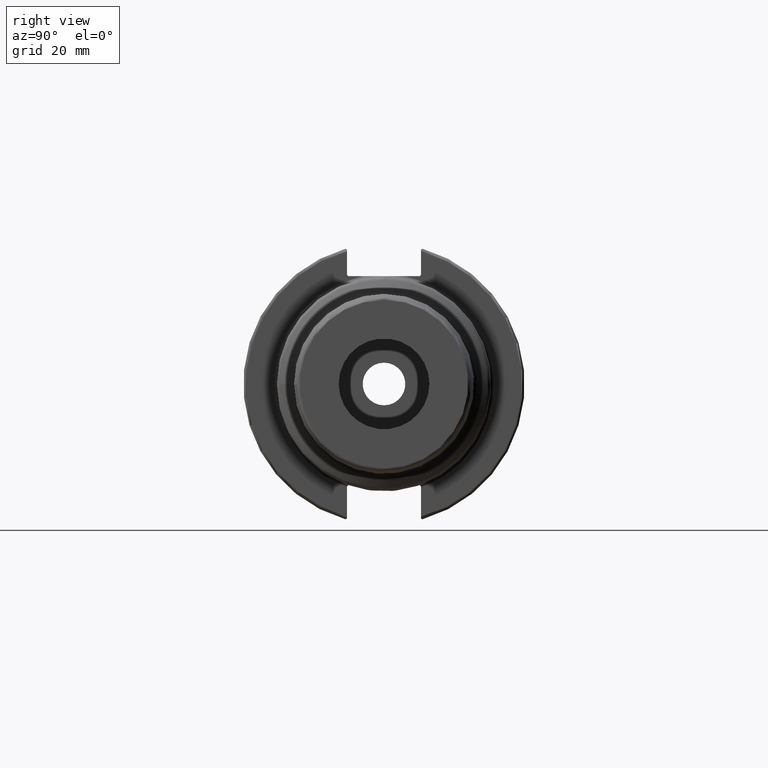
[diagram: clean part render]
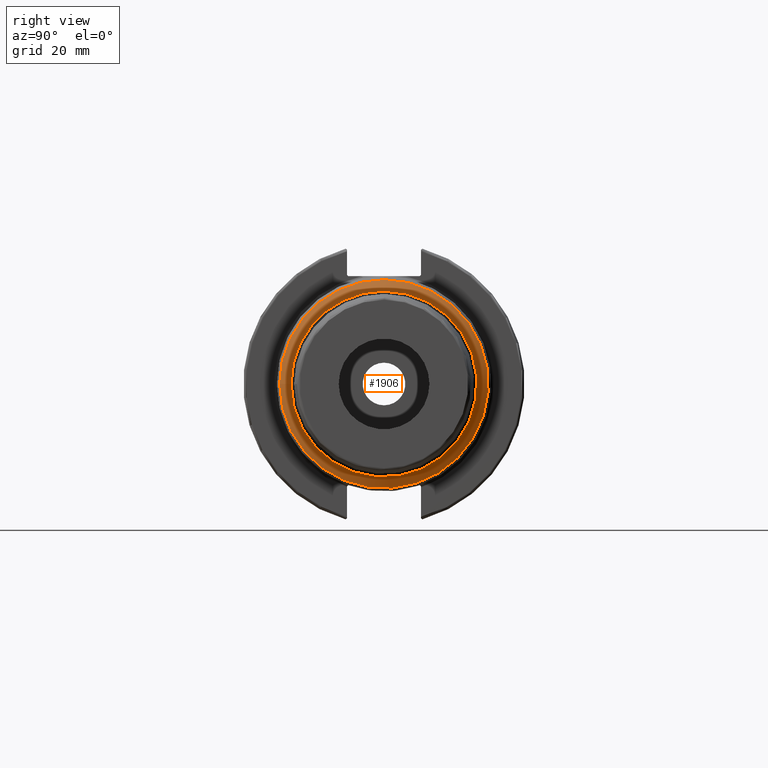
[diagram: same view with one face highlighted and labeled with its STEP entity id]
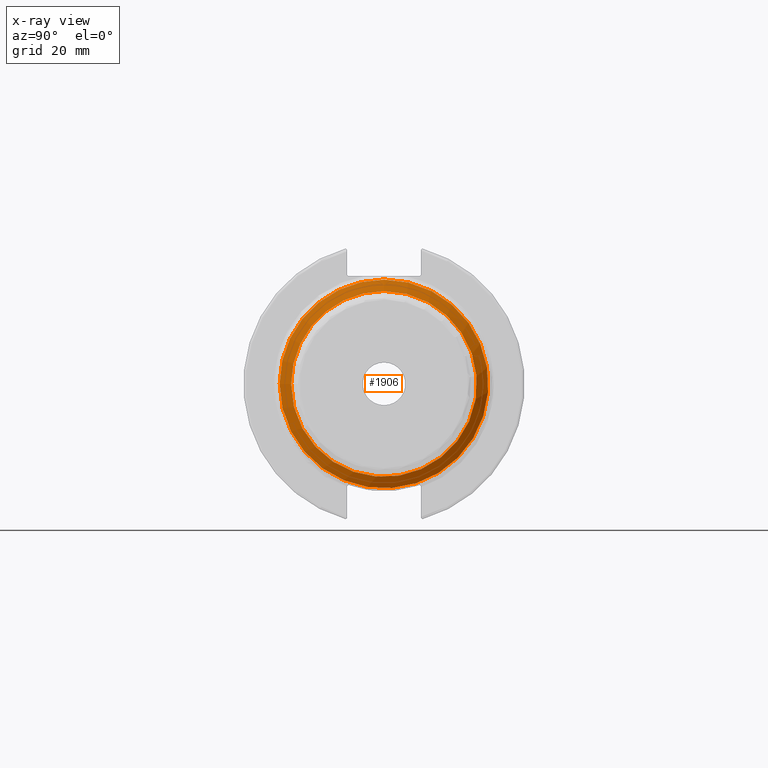
[diagram: x-ray of the same camera — body ghosted, the highlighted face saturated]
A machine part, right view. The second image highlights one B-rep face of the part: STEP entity #1906.
The next image is the same camera in x-ray: the body ghosted, the highlighted face saturated — about 0% of this face is hidden behind the body in this view.
In plain terms, the highlighted conical surface has half-angle 60 deg.
Its self-contained STEP definition (entity closure, byte-faithful):
#169=LINE('',#2892,#276);
#276=VECTOR('',#2298,34.5);
#383=CONICAL_SURFACE('',#2044,34.5,1.0471975511966);
#403=FACE_OUTER_BOUND('',#513,.T.);
#513=EDGE_LOOP('',(#1284,#1285,#1286,#1287,#1288,#1289));
#639=CIRCLE('',#2039,32.5);
#643=CIRCLE('',#2043,32.5);
#644=CIRCLE('',#2045,36.5);
#645=CIRCLE('',#2046,36.5);
#771=VERTEX_POINT('',#2881);
#772=VERTEX_POINT('',#2882);
#775=VERTEX_POINT('',#2891);
#776=VERTEX_POINT('',#2893);
#974=EDGE_CURVE('',#771,#772,#639,.T.);
#978=EDGE_CURVE('',#772,#771,#643,.T.);
#979=EDGE_CURVE('',#771,#775,#169,.T.);
#980=EDGE_CURVE('',#776,#775,#644,.T.);
#981=EDGE_CURVE('',#775,#776,#645,.T.);
#1284=ORIENTED_EDGE('',*,*,#974,.F.);
#1285=ORIENTED_EDGE('',*,*,#979,.T.);
#1286=ORIENTED_EDGE('',*,*,#980,.F.);
#1287=ORIENTED_EDGE('',*,*,#981,.F.);
#1288=ORIENTED_EDGE('',*,*,#979,.F.);
#1289=ORIENTED_EDGE('',*,*,#978,.F.);
#1906=ADVANCED_FACE('',(#403),#383,.T.);
#2039=AXIS2_PLACEMENT_3D('',#2883,#2286,#2287);
#2043=AXIS2_PLACEMENT_3D('',#2889,#2294,#2295);
#2044=AXIS2_PLACEMENT_3D('',#2890,#2296,#2297);
#2045=AXIS2_PLACEMENT_3D('',#2894,#2299,#2300);
#2046=AXIS2_PLACEMENT_3D('',#2895,#2301,#2302);
#2286=DIRECTION('center_axis',(1.,0.,0.));
#2287=DIRECTION('ref_axis',(0.,-1.,3.06161699786838E-17));
#2294=DIRECTION('center_axis',(1.,0.,0.));
#2295=DIRECTION('ref_axis',(0.,-1.,3.06161699786838E-17));
#2296=DIRECTION('center_axis',(-1.,0.,0.));
#2297=DIRECTION('ref_axis',(0.,1.,0.));
#2298=DIRECTION('',(-0.5,-0.866025403784439,-1.06057523872491E-16));
#2299=DIRECTION('center_axis',(-1.,0.,0.));
#2300=DIRECTION('ref_axis',(0.,-1.,3.06161699786838E-17));
#2301=DIRECTION('center_axis',(-1.,0.,0.));
#2302=DIRECTION('ref_axis',(0.,-1.,3.06161699786838E-17));
#2881=CARTESIAN_POINT('',(52.4226497308104,-32.5,-3.9801020972289E-15));
#2882=CARTESIAN_POINT('',(52.4226497308104,-3.9801020972289E-15,32.5));
#2883=CARTESIAN_POINT('Origin',(52.4226497308104,0.,-4.97512762153612E-15));
#2889=CARTESIAN_POINT('Origin',(52.4226497308104,0.,-4.97512762153612E-15));
#2890=CARTESIAN_POINT('Origin',(51.2679491924311,0.,0.));
#2891=CARTESIAN_POINT('',(50.1132486540519,-36.5,-4.46996081688784E-15));
#2892=CARTESIAN_POINT('',(51.2679491924311,-34.5,-4.22503145705837E-15));
#2893=CARTESIAN_POINT('',(50.1132486540519,-4.46996081688784E-15,36.5));
#2894=CARTESIAN_POINT('Origin',(50.1132486540519,0.,-5.5874510211098E-15));
#2895=CARTESIAN_POINT('Origin',(50.1132486540519,0.,-5.5874510211098E-15));